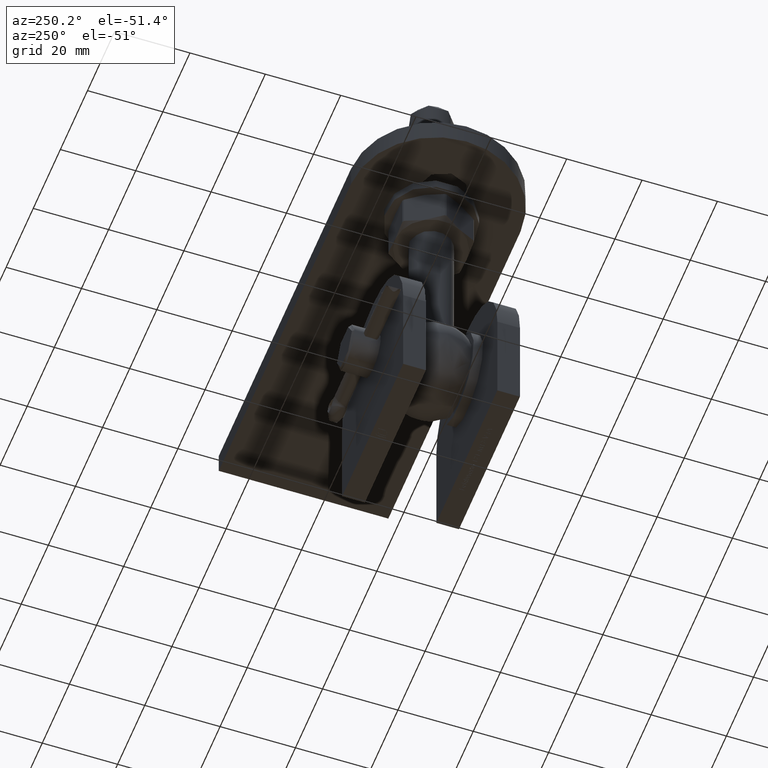
[diagram: clean part render]
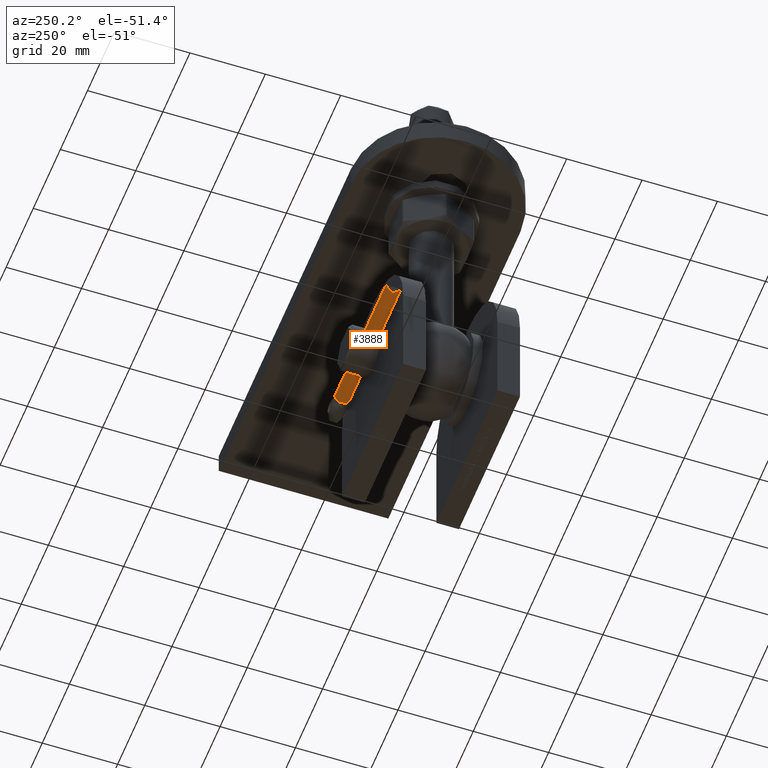
[diagram: same view with one face highlighted and labeled with its STEP entity id]
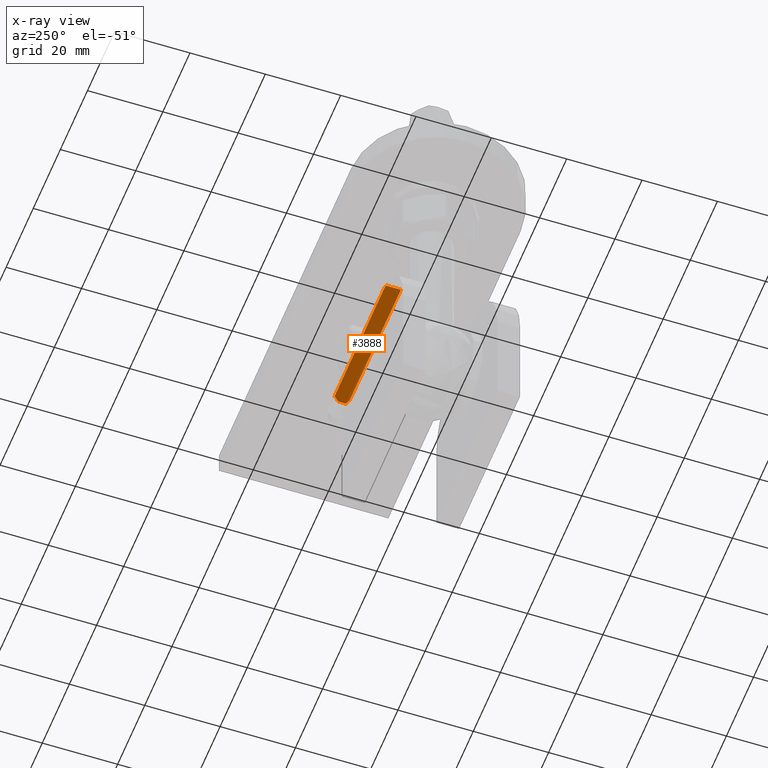
[diagram: x-ray of the same camera — body ghosted, the highlighted face saturated]
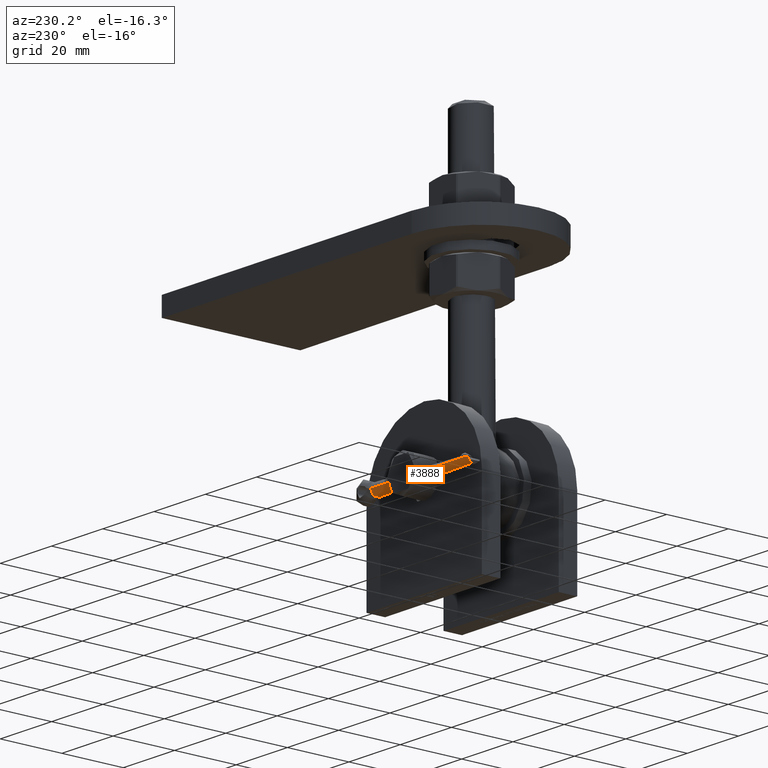
[diagram: same view with one face highlighted and labeled with its STEP entity id]
A machine part, auxiliary view. The second image highlights one B-rep face of the part: STEP entity #3888.
The next image is the same camera in x-ray: the body ghosted, the highlighted face saturated — about 0% of this face is hidden behind the body in this view.
A second angle (auxiliary view) of the same face is appended — the face is thin or edge-on in the first view.
In plain terms, the highlighted cylindrical surface (edge-blend (fillet) strip) has radius 2 mm, axis along (-1, 0, -0).
Its self-contained STEP definition (entity closure, byte-faithful):
#192 = B_SPLINE_CURVE_WITH_KNOTS ( 'NONE', 3,
 ( #534, #12814, #3241, #11574, #7502, #7438 ),
 .UNSPECIFIED., .F., .F.,
 ( 4, 2, 4 ),
 ( 1.361785551346922211E-17, 0.0003907398978438544131, 0.0007814797956876946231 ),
 .UNSPECIFIED. ) ;
#428 = EDGE_CURVE ( 'NONE', #3449, #2966, #2446, .T. ) ;
#534 = CARTESIAN_POINT ( 'NONE',  ( 1.999974999843747936, -2.009999999999996234, 1.640786437626898131 ) ) ;
#873 = CARTESIAN_POINT ( 'NONE',  ( -1.976930878406433001, -2.302893218813446552, 2.347893218813459359 ) ) ;
#960 = CARTESIAN_POINT ( 'NONE',  ( -1.999974999843747936, -2.009999999999996234, 1.640786437626898131 ) ) ;
#1823 = CARTESIAN_POINT ( 'NONE',  ( 1.960163090804191821, -2.397190958417937612, 2.442190958417950863 ) ) ;
#1856 = FACE_OUTER_BOUND ( 'NONE', #15051, .T. ) ;
#1986 = ORIENTED_EDGE ( 'NONE', *, *, #17429, .T. ) ;
#2062 = CARTESIAN_POINT ( 'NONE',  ( -1.972094923097408969, -2.334456650356929508, 2.379456650356942760 ) ) ;
#2098 = CARTESIAN_POINT ( 'NONE',  ( -2.000304175341565571, -2.036154013636167104, 1.903040988854215243 ) ) ;
#2343 = CARTESIAN_POINT ( 'NONE',  ( -1.960163090804191377, -2.397190958417938500, 2.442190958417951752 ) ) ;
#2368 = VERTEX_POINT ( 'NONE', #2604 ) ;
#2446 =( BOUNDED_CURVE ( )  B_SPLINE_CURVE ( 3, ( #873, #2062, #13026, #3567 ),
 .UNSPECIFIED., .F., .F. ) 
 B_SPLINE_CURVE_WITH_KNOTS ( ( 4, 4 ),
 ( 4.864420579765845076, 4.912313627318070530 ),
 .UNSPECIFIED. ) 
 CURVE ( )  GEOMETRIC_REPRESENTATION_ITEM ( )  RATIONAL_B_SPLINE_CURVE ( ( 1.000000000000000000, 0.9998088638003066464, 0.9998088638003066464, 1.000000000000000000 ) ) 
 REPRESENTATION_ITEM ( '' )  );
#2604 = CARTESIAN_POINT ( 'NONE',  ( -1.999974999843747936, -2.009999999999998010, -35.49486598022955519 ) ) ;
#2966 = VERTEX_POINT ( 'NONE', #2343 ) ;
#3200 = CARTESIAN_POINT ( 'NONE',  ( 1.960163090804191821, -2.397190958417937612, 2.442190958417950863 ) ) ;
#3241 = CARTESIAN_POINT ( 'NONE',  ( 2.000305950469639882, -2.036021204855298361, 1.902580215578096423 ) ) ;
#3449 = VERTEX_POINT ( 'NONE', #14526 ) ;
#3544 = CARTESIAN_POINT ( 'NONE',  ( -1.995966298685232010, -2.136537324946969463, 2.144985217956242529 ) ) ;
#3567 = CARTESIAN_POINT ( 'NONE',  ( -1.960163090804191377, -2.397190958417938500, 2.442190958417951752 ) ) ;
#3702 = CARTESIAN_POINT ( 'NONE',  ( 1.999974999843747936, -2.009999999999998010, -35.49486598022955519 ) ) ;
#3888 = ADVANCED_FACE ( 'NONE', ( #1856 ), #8630, .T. ) ;
#3920 = LINE ( 'NONE', #17512, #7920 ) ;
#4593 = CARTESIAN_POINT ( 'NONE',  ( 1.966504592048697431, -2.365895239277503226, 2.410895239277516922 ) ) ;
#4721 = CARTESIAN_POINT ( 'NONE',  ( 1.972094923097408969, -2.334456650356929508, 2.379456650356942760 ) ) ;
#4827 = DIRECTION ( 'NONE',  ( 0.000000000000000000, -1.881828026739640336E-14, -1.000000000000000000 ) ) ;
#4932 = CARTESIAN_POINT ( 'NONE',  ( -1.999974999843747936, -2.009999999999996234, 1.640786437626898131 ) ) ;
#4965 = DIRECTION ( 'NONE',  ( 0.000000000000000000, 4.506376192783051987E-17, 1.000000000000000000 ) ) ;
#5242 = CARTESIAN_POINT ( 'NONE',  ( 1.402931416779078955, -5.147165340517916299, 1.067203767367970846 ) ) ;
#5254 = VERTEX_POINT ( 'NONE', #13443 ) ;
#5744 = ORIENTED_EDGE ( 'NONE', *, *, #6040, .T. ) ;
#5921 = VERTEX_POINT ( 'NONE', #960 ) ;
#5996 = CARTESIAN_POINT ( 'NONE',  ( 0.000000000000000000, -2.000000000000001776, -35.49486598022955519 ) ) ;
#6040 = EDGE_CURVE ( 'NONE', #12187, #2966, #12857, .T. ) ;
#6085 = CARTESIAN_POINT ( 'NONE',  ( 1.976930878406433001, -2.302893218813446996, 2.347893218813459804 ) ) ;
#6427 = ORIENTED_EDGE ( 'NONE', *, *, #6601, .F. ) ;
#6601 = EDGE_CURVE ( 'NONE', #12187, #10836, #7132, .T. ) ;
#6769 = CARTESIAN_POINT ( 'NONE',  ( 1.976930878406433001, -2.302893218813446996, 2.347893218813459804 ) ) ;
#7132 =( BOUNDED_CURVE ( )  B_SPLINE_CURVE ( 3, ( #1823, #4593, #4721, #6085 ),
 .UNSPECIFIED., .F., .T. ) 
 B_SPLINE_CURVE_WITH_KNOTS ( ( 4, 4 ),
 ( 1.370871679861516368, 1.418764727413741156 ),
 .UNSPECIFIED. ) 
 CURVE ( )  GEOMETRIC_REPRESENTATION_ITEM ( )  RATIONAL_B_SPLINE_CURVE ( ( 1.000000000000000000, 0.9998088638003066464, 0.9998088638003066464, 1.000000000000000000 ) ) 
 REPRESENTATION_ITEM ( '' )  );
#7251 = EDGE_CURVE ( 'NONE', #3449, #5921, #10759, .T. ) ;
#7438 = CARTESIAN_POINT ( 'NONE',  ( 1.976930878406433001, -2.302893218813446996, 2.347893218813459804 ) ) ;
#7502 = CARTESIAN_POINT ( 'NONE',  ( 1.991165454983529148, -2.209986635805283317, 2.254986635805293904 ) ) ;
#7920 = VECTOR ( 'NONE', #13515, 1000.000000000000000 ) ;
#8220 = CARTESIAN_POINT ( 'NONE',  ( -1.402931416779075402, -5.147165340517916299, 1.067203767367969958 ) ) ;
#8252 = EDGE_CURVE ( 'NONE', #5254, #10836, #192, .T. ) ;
#8630 = CYLINDRICAL_SURFACE ( 'NONE', #13879, 2.000000000000000000 ) ;
#8726 = AXIS2_PLACEMENT_3D ( 'NONE', #16951, #4827, #14248 ) ;
#9049 = EDGE_CURVE ( 'NONE', #14582, #2368, #17419, .T. ) ;
#9494 = EDGE_CURVE ( 'NONE', #2368, #5921, #3920, .T. ) ;
#9693 = CARTESIAN_POINT ( 'NONE',  ( -1.960163090804191377, -2.397190958417938500, 2.442190958417951752 ) ) ;
#10152 = DIRECTION ( 'NONE',  ( 0.000000000000000000, -1.000000000000000000, 0.000000000000000000 ) ) ;
#10655 = VECTOR ( 'NONE', #4965, 1000.000000000000000 ) ;
#10759 = B_SPLINE_CURVE_WITH_KNOTS ( 'NONE', 3,
 ( #14401, #16818, #3544, #2098, #12999, #4932 ),
 .UNSPECIFIED., .F., .F.,
 ( 4, 2, 4 ),
 ( 4.336808689942017736E-19, 0.0003906186975196958310, 0.0007812373950393905779 ),
 .UNSPECIFIED. ) ;
#10836 = VERTEX_POINT ( 'NONE', #6769 ) ;
#11279 = ORIENTED_EDGE ( 'NONE', *, *, #9494, .F. ) ;
#11574 = CARTESIAN_POINT ( 'NONE',  ( 1.995978109659281907, -2.136355448898935361, 2.144687096385061942 ) ) ;
#11582 = ORIENTED_EDGE ( 'NONE', *, *, #8252, .T. ) ;
#11584 = DIRECTION ( 'NONE',  ( 0.000000000000000000, 4.506376192783051987E-17, 1.000000000000000000 ) ) ;
#12187 = VERTEX_POINT ( 'NONE', #3200 ) ;
#12640 = CARTESIAN_POINT ( 'NONE',  ( 1.999974999843747936, -2.009999999999998010, -35.49486598022955519 ) ) ;
#12814 = CARTESIAN_POINT ( 'NONE',  ( 1.999974999843747492, -2.009999999999997122, 1.772899446795177969 ) ) ;
#12857 =( BOUNDED_CURVE ( )  B_SPLINE_CURVE ( 3, ( #17535, #5242, #8220, #9693 ),
 .UNSPECIFIED., .F., .F. ) 
 B_SPLINE_CURVE_WITH_KNOTS ( ( 4, 4 ),
 ( 1.770720973728275860, 4.512464333451309706 ),
 .UNSPECIFIED. ) 
 CURVE ( )  GEOMETRIC_REPRESENTATION_ITEM ( )  RATIONAL_B_SPLINE_CURVE ( ( 1.000000000000000000, 0.4657303194726452600, 0.4657303194726452600, 1.000000000000000000 ) ) 
 REPRESENTATION_ITEM ( '' )  );
#12999 = CARTESIAN_POINT ( 'NONE',  ( -1.999974999843747492, -2.009999999999996678, 1.772869004342748633 ) ) ;
#13007 = ORIENTED_EDGE ( 'NONE', *, *, #428, .F. ) ;
#13026 = CARTESIAN_POINT ( 'NONE',  ( -1.966504592048696987, -2.365895239277503670, 2.410895239277517366 ) ) ;
#13443 = CARTESIAN_POINT ( 'NONE',  ( 1.999974999843747936, -2.009999999999996234, 1.640786437626898131 ) ) ;
#13515 = DIRECTION ( 'NONE',  ( 0.000000000000000000, 4.506376192783051987E-17, 1.000000000000000000 ) ) ;
#13879 = AXIS2_PLACEMENT_3D ( 'NONE', #5996, #11584, #10152 ) ;
#14248 = DIRECTION ( 'NONE',  ( 1.000000000000000000, 0.000000000000000000, 0.000000000000000000 ) ) ;
#14401 = CARTESIAN_POINT ( 'NONE',  ( -1.976930878406433001, -2.302893218813446552, 2.347893218813459359 ) ) ;
#14526 = CARTESIAN_POINT ( 'NONE',  ( -1.976930878406433001, -2.302893218813446552, 2.347893218813459359 ) ) ;
#14582 = VERTEX_POINT ( 'NONE', #12640 ) ;
#15051 = EDGE_LOOP ( 'NONE', ( #6427, #5744, #13007, #15418, #11279, #16978, #1986, #11582 ) ) ;
#15275 = LINE ( 'NONE', #3702, #10655 ) ;
#15418 = ORIENTED_EDGE ( 'NONE', *, *, #7251, .T. ) ;
#16818 = CARTESIAN_POINT ( 'NONE',  ( -1.991164207501356920, -2.209994777902485996, 2.254994777902493475 ) ) ;
#16951 = CARTESIAN_POINT ( 'NONE',  ( 0.000000000000000000, -2.000000000000001776, -35.49486598022955519 ) ) ;
#16978 = ORIENTED_EDGE ( 'NONE', *, *, #9049, .F. ) ;
#17419 = CIRCLE ( 'NONE', #8726, 2.000000000000000000 ) ;
#17429 = EDGE_CURVE ( 'NONE', #14582, #5254, #15275, .T. ) ;
#17512 = CARTESIAN_POINT ( 'NONE',  ( -1.999974999843747936, -2.009999999999998010, -35.49486598022955519 ) ) ;
#17535 = CARTESIAN_POINT ( 'NONE',  ( 1.960163090804191821, -2.397190958417937612, 2.442190958417950863 ) ) ;